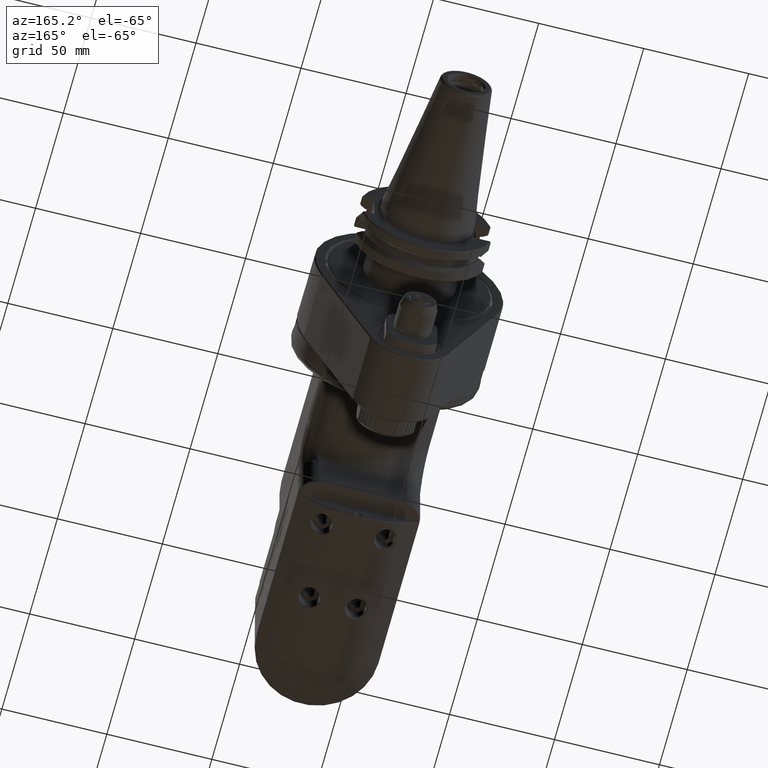
[diagram: clean part render]
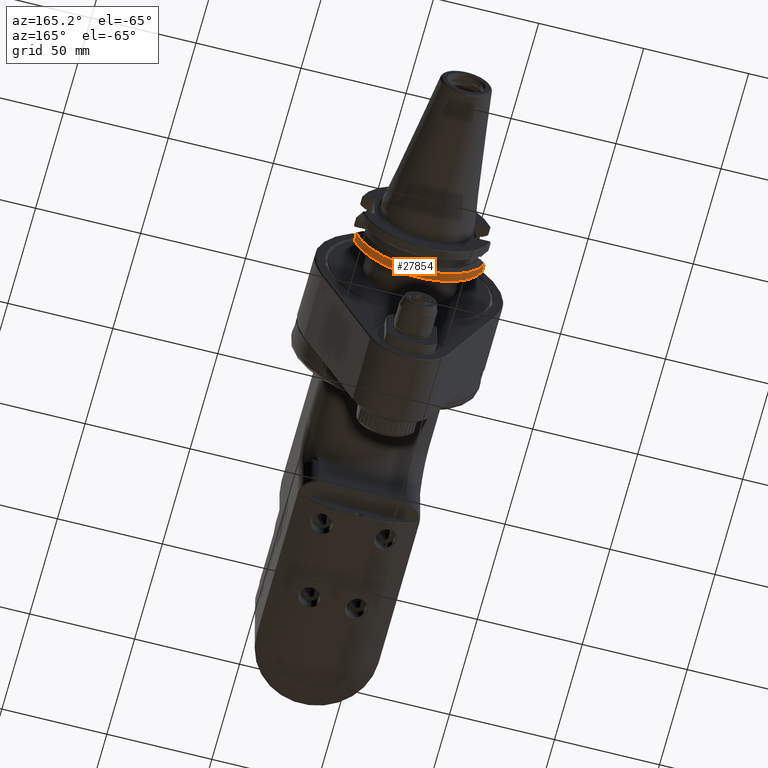
[diagram: same view with one face highlighted and labeled with its STEP entity id]
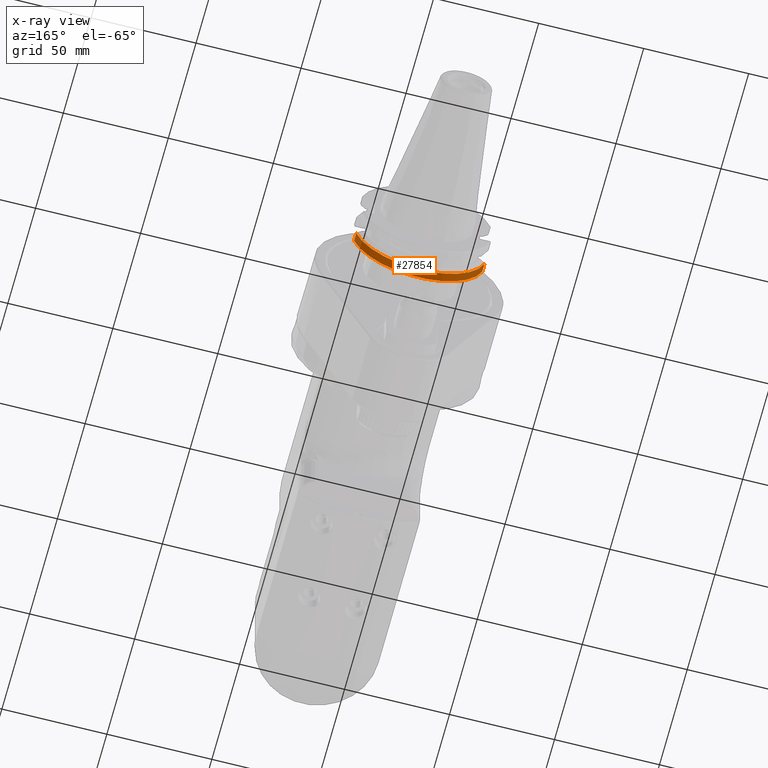
[diagram: x-ray of the same camera — body ghosted, the highlighted face saturated]
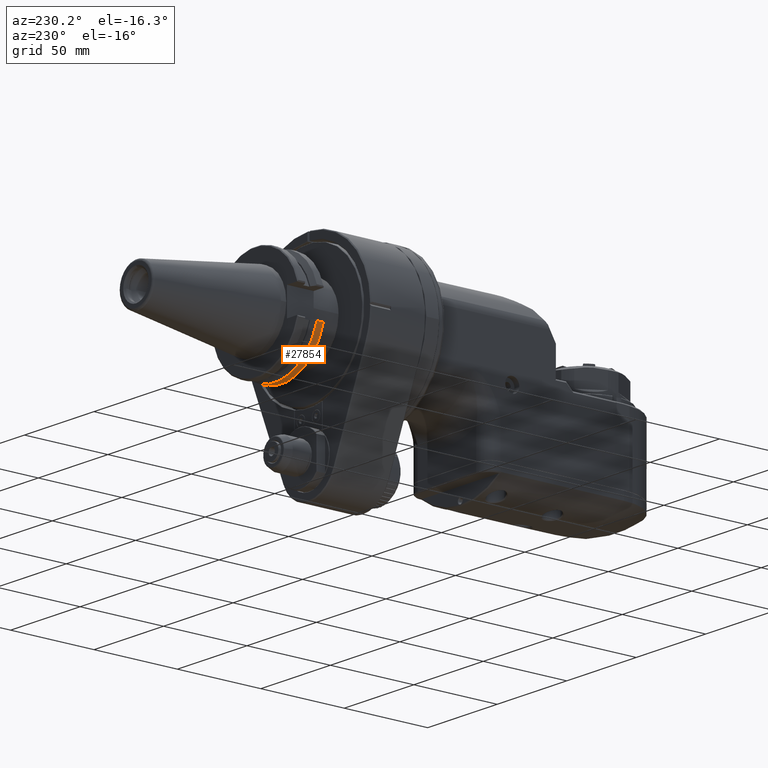
[diagram: same view with one face highlighted and labeled with its STEP entity id]
A machine part, auxiliary view. The second image highlights one B-rep face of the part: STEP entity #27854.
The next image is the same camera in x-ray: the body ghosted, the highlighted face saturated — about 0% of this face is hidden behind the body in this view.
A second angle (auxiliary view) of the same face is appended — the face is thin or edge-on in the first view.
In plain terms, the highlighted cylindrical surface (partial cylindrical patch) has radius 31.75 mm, axis along (0, 1, 0).
Its self-contained STEP definition (entity closure, byte-faithful):
#448=CYLINDRICAL_SURFACE('',#30558,31.75);
#2181=CIRCLE('',#30538,31.75);
#2183=CIRCLE('',#30542,31.75);
#4090=FACE_OUTER_BOUND('',#5803,.T.);
#5803=EDGE_LOOP('',(#25335,#25336,#25337,#25338));
#8138=LINE('',#51175,#10479);
#8139=LINE('',#51182,#10480);
#10479=VECTOR('',#38146,3.974967690969);
#10480=VECTOR('',#38157,3.974967690969);
#13144=VERTEX_POINT('',#51157);
#13146=VERTEX_POINT('',#51170);
#13147=VERTEX_POINT('',#51174);
#13148=VERTEX_POINT('',#51178);
#17200=EDGE_CURVE('',#13144,#13146,#2181,.T.);
#17201=EDGE_CURVE('',#13144,#13147,#8138,.T.);
#17203=EDGE_CURVE('',#13148,#13147,#2183,.T.);
#17205=EDGE_CURVE('',#13148,#13146,#8139,.T.);
#25335=ORIENTED_EDGE('',*,*,#17201,.F.);
#25336=ORIENTED_EDGE('',*,*,#17200,.T.);
#25337=ORIENTED_EDGE('',*,*,#17205,.F.);
#25338=ORIENTED_EDGE('',*,*,#17203,.T.);
#27854=ADVANCED_FACE('',(#4090),#448,.T.);
#30538=AXIS2_PLACEMENT_3D('',#51172,#38142,#38143);
#30542=AXIS2_PLACEMENT_3D('',#51179,#38151,#38152);
#30558=AXIS2_PLACEMENT_3D('',#51210,#38194,#38195);
#38142=DIRECTION('center_axis',(0.,-1.,0.));
#38143=DIRECTION('ref_axis',(-0.961843563163991,0.,-0.273599999999997));
#38146=DIRECTION('',(4.156038461383E-13,-1.,6.167024813665E-14));
#38151=DIRECTION('center_axis',(0.,1.,0.));
#38152=DIRECTION('ref_axis',(0.,0.,-1.));
#38157=DIRECTION('',(4.227540198353E-13,1.,-6.524533498515E-14));
#38194=DIRECTION('center_axis',(0.,1.,0.));
#38195=DIRECTION('ref_axis',(1.,0.,0.));
#51157=CARTESIAN_POINT('',(-30.53853313046,53.375,-8.686799999999));
#51170=CARTESIAN_POINT('',(30.53853313046,53.375,-8.686799999999));
#51172=CARTESIAN_POINT('Origin',(0.,53.375,0.));
#51174=CARTESIAN_POINT('',(-30.53853313046,49.40003230903,-8.686799999999));
#51175=CARTESIAN_POINT('',(-30.53853313046,53.375,-8.686799999999));
#51178=CARTESIAN_POINT('',(30.53853313045,49.40003230903,-8.686799999998));
#51179=CARTESIAN_POINT('Origin',(-4.632444131739E-14,49.40003230903,-1.874056465567E-13));
#51182=CARTESIAN_POINT('',(30.53853313046,49.40003230903,-8.686799999999));
#51210=CARTESIAN_POINT('Origin',(0.,48.105,0.));